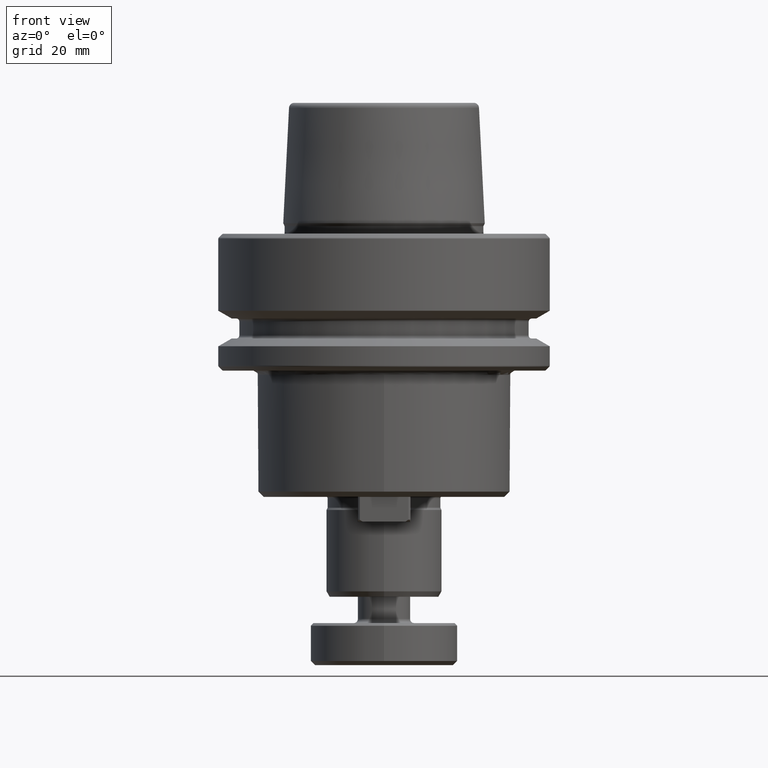
[diagram: clean part render]
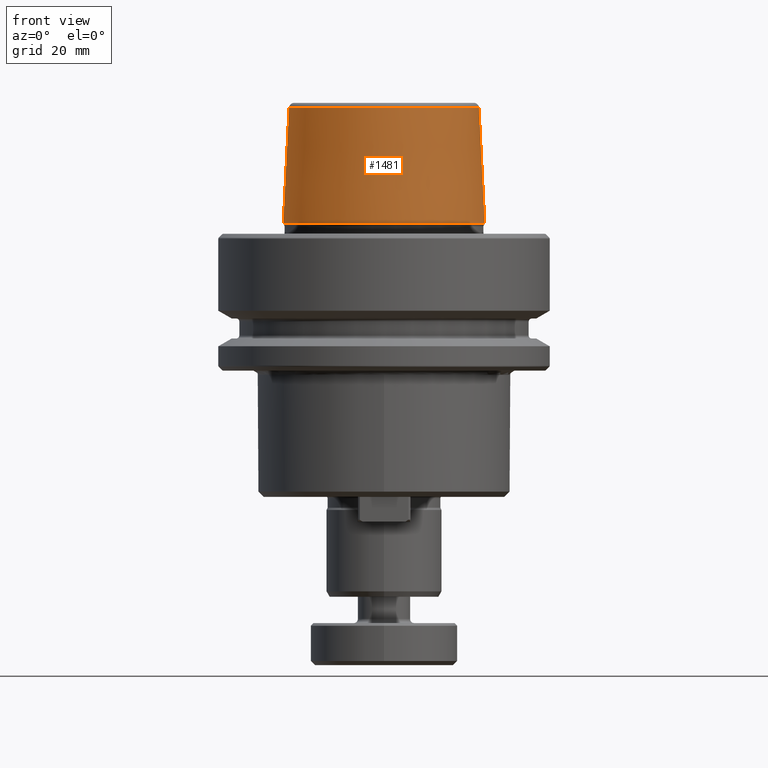
[diagram: same view with one face highlighted and labeled with its STEP entity id]
A machine part, front view. The second image highlights one B-rep face of the part: STEP entity #1481.
In plain terms, the highlighted conical surface has half-angle 2.868 deg.
Its self-contained STEP definition (entity closure, byte-faithful):
#25 = ORIENTED_EDGE ( 'NONE', *, *, #466, .F. ) ;
#213 = DIRECTION ( 'NONE',  ( 1.000000000000000000, 0.0000000000000000000, 0.0000000000000000000 ) ) ;
#277 = CARTESIAN_POINT ( 'NONE',  ( 5.911295015107568500, -4.286756626697749300, 87.27079256391856200 ) ) ;
#310 = CARTESIAN_POINT ( 'NONE',  ( -31.29962629687005200, -4.286756626697749300, 65.32075645340546500 ) ) ;
#364 = AXIS2_PLACEMENT_3D ( 'NONE', #1776, #2439, #2893 ) ;
#399 = AXIS2_PLACEMENT_3D ( 'NONE', #962, #2551, #1192 ) ;
#400 = CARTESIAN_POINT ( 'NONE',  ( 5.911295015107568500, -4.286756626697749300, 87.27079256391856200 ) ) ;
#409 = VECTOR ( 'NONE', #2325, 1000.000000000000200 ) ;
#466 = EDGE_CURVE ( 'NONE', #850, #2309, #2233, .T. ) ;
#477 = DIRECTION ( 'NONE',  ( 0.05003611051310813400, 6.127656258166110500E-018, -0.9987474093306675200 ) ) ;
#538 = EDGE_CURVE ( 'NONE', #2251, #2309, #2206, .T. ) ;
#561 = EDGE_CURVE ( 'NONE', #851, #2251, #1010, .T. ) ;
#619 = EDGE_LOOP ( 'NONE', ( #25, #2165, #1379, #753 ) ) ;
#753 = ORIENTED_EDGE ( 'NONE', *, *, #538, .T. ) ;
#850 = VERTEX_POINT ( 'NONE', #400 ) ;
#851 = VERTEX_POINT ( 'NONE', #1989 ) ;
#962 = CARTESIAN_POINT ( 'NONE',  ( -12.14432970522239700, -4.286756626697751900, 65.32075645340546500 ) ) ;
#974 = CARTESIAN_POINT ( 'NONE',  ( -30.19995442555236300, -4.286756626697751900, 87.27079256391856200 ) ) ;
#1010 = LINE ( 'NONE', #974, #409 ) ;
#1192 = DIRECTION ( 'NONE',  ( 1.000000000000000000, 0.0000000000000000000, 0.0000000000000000000 ) ) ;
#1379 = ORIENTED_EDGE ( 'NONE', *, *, #561, .T. ) ;
#1481 = ADVANCED_FACE ( 'NONE', ( #1608 ), #2665, .T. ) ;
#1567 = DIRECTION ( 'NONE',  ( -0.0000000000000000000, -0.0000000000000000000, 1.000000000000000000 ) ) ;
#1570 = CIRCLE ( 'NONE', #2324, 18.05562472032996600 ) ;
#1608 = FACE_OUTER_BOUND ( 'NONE', #619, .T. ) ;
#1776 = CARTESIAN_POINT ( 'NONE',  ( -12.14432970522239700, -4.286756626697751900, 87.27079256391856200 ) ) ;
#1989 = CARTESIAN_POINT ( 'NONE',  ( -30.19995442555236300, -4.286756626697751900, 87.27079256391856200 ) ) ;
#2165 = ORIENTED_EDGE ( 'NONE', *, *, #2523, .F. ) ;
#2206 = CIRCLE ( 'NONE', #399, 19.15529659164765200 ) ;
#2233 = LINE ( 'NONE', #277, #2846 ) ;
#2251 = VERTEX_POINT ( 'NONE', #310 ) ;
#2309 = VERTEX_POINT ( 'NONE', #2807 ) ;
#2324 = AXIS2_PLACEMENT_3D ( 'NONE', #2910, #1567, #213 ) ;
#2325 = DIRECTION ( 'NONE',  ( -0.05003611051310813400, 0.0000000000000000000, -0.9987474093306675200 ) ) ;
#2439 = DIRECTION ( 'NONE',  ( 0.0000000000000000000, 0.0000000000000000000, -1.000000000000000000 ) ) ;
#2523 = EDGE_CURVE ( 'NONE', #851, #850, #1570, .T. ) ;
#2551 = DIRECTION ( 'NONE',  ( -0.0000000000000000000, -0.0000000000000000000, 1.000000000000000000 ) ) ;
#2665 = CONICAL_SURFACE ( 'NONE', #364, 18.05562472032996600, 0.05005701257456006400 ) ;
#2807 = CARTESIAN_POINT ( 'NONE',  ( 7.010966886425256600, -4.286756626697751900, 65.32075645340546500 ) ) ;
#2846 = VECTOR ( 'NONE', #477, 1000.000000000000200 ) ;
#2893 = DIRECTION ( 'NONE',  ( -1.000000000000000000, 0.0000000000000000000, 0.0000000000000000000 ) ) ;
#2910 = CARTESIAN_POINT ( 'NONE',  ( -12.14432970522239700, -4.286756626697751900, 87.27079256391856200 ) ) ;